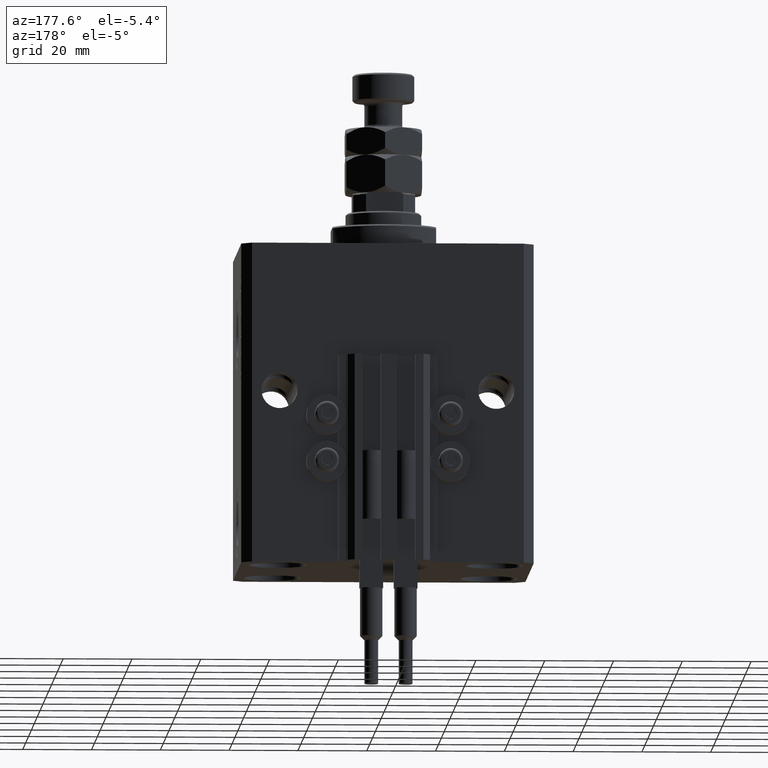
[diagram: clean part render]
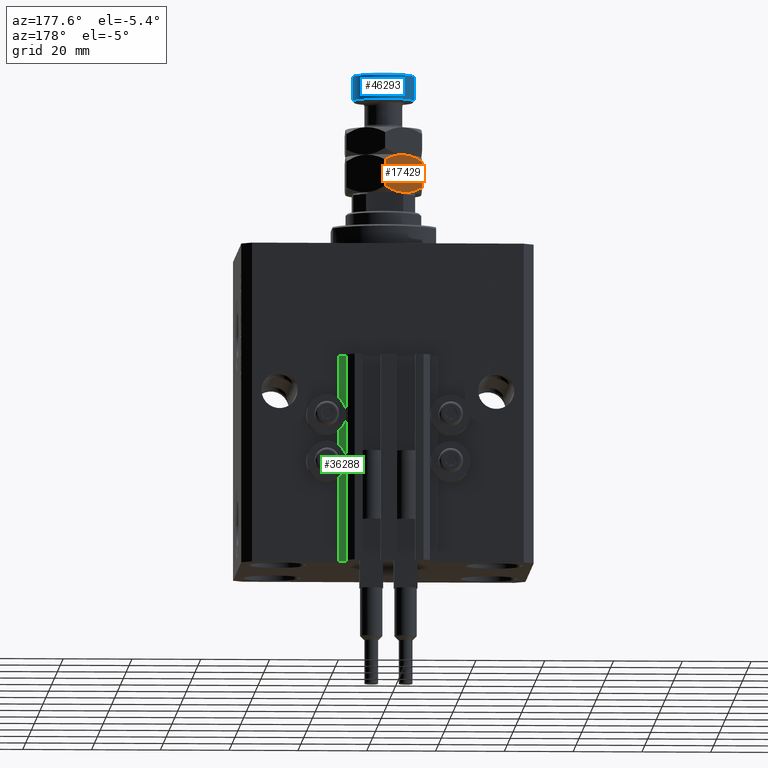
[diagram: same view with three faces highlighted in distinct colors, each labeled with its STEP entity id]
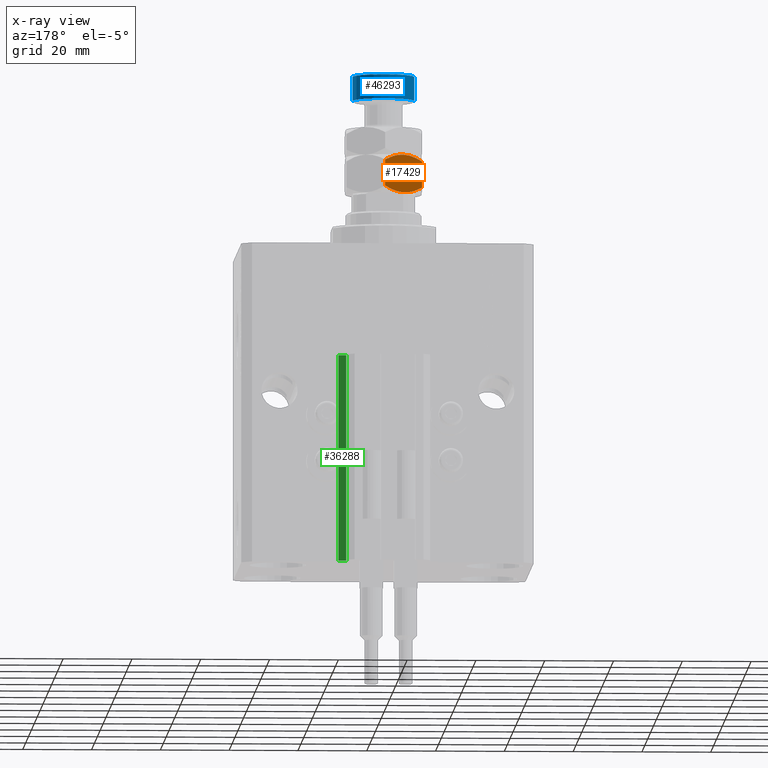
[diagram: x-ray of the same camera — body ghosted, the three highlighted faces saturated]
A machine part, auxiliary view with three faces highlighted in distinct colors.
The next image is the same camera in x-ray (body ghosted, the three faces saturated) — at least one of them is partly hidden behind the body in this view.
Their STEP definitions:

[orange] entity #17429 — the highlighted planar face has unit normal (0.5, -0.866, 0).
#1048 = B_SPLINE_CURVE_WITH_KNOTS ( 'NONE', 3,
 ( #16907, #5752, #32385, #20956, #13134, #36673, #28581, #13620 ),
 .UNSPECIFIED., .F., .F.,
 ( 4, 2, 2, 4 ),
 ( 2.544311317612473652E-07, 0.003291871675740032539, 0.004937680298044168185, 0.006583488920348303831 ),
 .UNSPECIFIED. ) ;
#1304 = VERTEX_POINT ( 'NONE', #27755 ) ;
#1495 = CARTESIAN_POINT ( 'NONE',  ( -10.13851939750335696, 6.848229018838968507, 9.795670135581390880 ) ) ;
#1552 = VECTOR ( 'NONE', #30016, 1000.000000000000000 ) ;
#2055 = CARTESIAN_POINT ( 'NONE',  ( -5.499999999999992895, 9.526279441628830114, 0.000000000000000000 ) ) ;
#3750 = FACE_OUTER_BOUND ( 'NONE', #33622, .T. ) ;
#4187 = B_SPLINE_CURVE_WITH_KNOTS ( 'NONE', 3,
 ( #22260, #45064, #14667, #25814, #41515, #30132, #44812, #10112 ),
 .UNSPECIFIED., .F., .F.,
 ( 4, 2, 2, 4 ),
 ( 2.544311317609508508E-07, 0.003291871675740026034, 0.004937680298044156910, 0.006583488920348289086 ),
 .UNSPECIFIED. ) ;
#4335 = AXIS2_PLACEMENT_3D ( 'NONE', #23017, #46073, #11376 ) ;
#5432 = VERTEX_POINT ( 'NONE', #38506 ) ;
#5559 = VERTEX_POINT ( 'NONE', #8850 ) ;
#5752 = CARTESIAN_POINT ( 'NONE',  ( -10.13752086928278118, 6.848805519375908979, 1.203753363881748362 ) ) ;
#6853 = EDGE_CURVE ( 'NONE', #5559, #24957, #22577, .T. ) ;
#7717 = EDGE_CURVE ( 'NONE', #49328, #5432, #45206, .T. ) ;
#8850 = CARTESIAN_POINT ( 'NONE',  ( -11.00000000000000000, 6.350852961085890591, 9.298294077828234805 ) ) ;
#10112 = CARTESIAN_POINT ( 'NONE',  ( -5.499999999999990230, 9.526279441628824785, 11.00000000000000000 ) ) ;
#11376 = DIRECTION ( 'NONE',  ( 0.8660254037844389297, 0.4999999999999992784, 0.000000000000000000 ) ) ;
#13134 = CARTESIAN_POINT ( 'NONE',  ( -7.420105971005176215, 8.417705742396382362, 0.2081220748670755127 ) ) ;
#13620 = CARTESIAN_POINT ( 'NONE',  ( -5.499999999999992895, 9.526279441628830114, 0.000000000000000000 ) ) ;
#13721 = CARTESIAN_POINT ( 'NONE',  ( -3.602926119288147433, 10.62155555733042434, 0.1689086083647601266 ) ) ;
#14667 = CARTESIAN_POINT ( 'NONE',  ( -1.744478007639206130, 11.69453107486589083, 10.21937661245322637 ) ) ;
#16466 = CARTESIAN_POINT ( 'NONE',  ( -5.499999999999990230, 9.526279441628824785, 11.00000000000000000 ) ) ;
#16907 = CARTESIAN_POINT ( 'NONE',  ( -11.00000000000000000, 6.350852961085892368, 1.701705922171765195 ) ) ;
#17429 = ADVANCED_FACE ( 'NONE', ( #3750 ), #18016, .F. ) ;
#18016 = PLANE ( 'NONE',  #4335 ) ;
#18334 = CARTESIAN_POINT ( 'NONE',  ( 0.000000000000000000, 12.70170592217176342, 11.00000000000000000 ) ) ;
#20501 = CARTESIAN_POINT ( 'NONE',  ( -11.00000000000000000, 6.350852961085890591, 9.298294077828234805 ) ) ;
#20742 = CARTESIAN_POINT ( 'NONE',  ( -7.397073880711845462, 8.431003325927239445, 10.83109139163524404 ) ) ;
#20956 = CARTESIAN_POINT ( 'NONE',  ( -7.884967580346608607, 8.149317767107183030, 0.3282192120904074417 ) ) ;
#21238 = CARTESIAN_POINT ( 'NONE',  ( -6.456670474420569406, 8.973945485696344093, 11.00000000000000000 ) ) ;
#22260 = CARTESIAN_POINT ( 'NONE',  ( -4.327962126576701651E-16, 12.70170592217176342, 9.298294077828241910 ) ) ;
#22577 = LINE ( 'NONE', #38031, #24200 ) ;
#23017 = CARTESIAN_POINT ( 'NONE',  ( 0.000000000000000000, 12.70170592217176342, 11.00000000000000000 ) ) ;
#24200 = VECTOR ( 'NONE', #34251, 1000.000000000000000 ) ;
#24441 = ORIENTED_EDGE ( 'NONE', *, *, #28535, .F. ) ;
#24957 = VERTEX_POINT ( 'NONE', #26880 ) ;
#25814 = CARTESIAN_POINT ( 'NONE',  ( -3.115032419653383400, 10.90324111615047542, 10.67178078790959539 ) ) ;
#26880 = CARTESIAN_POINT ( 'NONE',  ( -11.00000000000000000, 6.350852961085892368, 1.701705922171765195 ) ) ;
#27732 = EDGE_CURVE ( 'NONE', #1304, #5559, #39915, .T. ) ;
#27755 = CARTESIAN_POINT ( 'NONE',  ( -5.499999999999990230, 9.526279441628824785, 11.00000000000000000 ) ) ;
#28299 = CARTESIAN_POINT ( 'NONE',  ( -4.327962126576701651E-16, 12.70170592217176342, 9.298294077828241910 ) ) ;
#28535 = EDGE_CURVE ( 'NONE', #49328, #1304, #4187, .T. ) ;
#28581 = CARTESIAN_POINT ( 'NONE',  ( -5.981709287746635795, 9.248164454677164414, 1.734723475976807094E-15 ) ) ;
#29176 = CARTESIAN_POINT ( 'NONE',  ( -1.748214531935804672, 11.69237379155741330, 0.7776848045220272621 ) ) ;
#29455 = EDGE_CURVE ( 'NONE', #24957, #36551, #1048, .T. ) ;
#30016 = DIRECTION ( 'NONE',  ( -0.000000000000000000, -0.000000000000000000, -1.000000000000000000 ) ) ;
#30132 = CARTESIAN_POINT ( 'NONE',  ( -4.529374112020101428, 10.08667055933643830, 10.95634070256487469 ) ) ;
#32203 = ORIENTED_EDGE ( 'NONE', *, *, #6853, .F. ) ;
#32385 = CARTESIAN_POINT ( 'NONE',  ( -9.255521992360788985, 7.358027808391769398, 0.7806233875467772920 ) ) ;
#32979 = CARTESIAN_POINT ( 'NONE',  ( -4.543329525579419048, 10.07861339756131791, 1.768604793866978714E-15 ) ) ;
#33622 = EDGE_LOOP ( 'NONE', ( #40536, #32203, #36833, #24441, #44337, #43864 ) ) ;
#34251 = DIRECTION ( 'NONE',  ( -0.000000000000000000, -0.000000000000000000, -1.000000000000000000 ) ) ;
#36551 = VERTEX_POINT ( 'NONE', #39329 ) ;
#36673 = CARTESIAN_POINT ( 'NONE',  ( -6.470625887979888802, 8.965888323921223702, 0.04365929743512723255 ) ) ;
#36833 = ORIENTED_EDGE ( 'NONE', *, *, #27732, .F. ) ;
#37733 = EDGE_CURVE ( 'NONE', #36551, #5432, #40366, .T. ) ;
#38031 = CARTESIAN_POINT ( 'NONE',  ( -11.00000000000000000, 6.350852961085890591, 11.00000000000000000 ) ) ;
#38506 = CARTESIAN_POINT ( 'NONE',  ( 9.006588997586899406E-16, 12.70170592217176342, 1.701705922171758312 ) ) ;
#39329 = CARTESIAN_POINT ( 'NONE',  ( -5.499999999999992895, 9.526279441628830114, 0.000000000000000000 ) ) ;
#39915 = B_SPLINE_CURVE_WITH_KNOTS ( 'NONE', 3,
 ( #16466, #21238, #20742, #47358, #1495, #20501 ),
 .UNSPECIFIED., .F., .F.,
 ( 4, 2, 4 ),
 ( 0.006583488920348289086, 0.009852050593448704457, 0.01312061226654911983 ),
 .UNSPECIFIED. ) ;
#40366 = B_SPLINE_CURVE_WITH_KNOTS ( 'NONE', 3,
 ( #2055, #32979, #13721, #29176, #44622, #40818 ),
 .UNSPECIFIED., .F., .F.,
 ( 4, 2, 4 ),
 ( 0.006583488920348303831, 0.009852050593448711396, 0.01312061226654911809 ),
 .UNSPECIFIED. ) ;
#40536 = ORIENTED_EDGE ( 'NONE', *, *, #29455, .F. ) ;
#40818 = CARTESIAN_POINT ( 'NONE',  ( 9.006588997586899406E-16, 12.70170592217176342, 1.701705922171758312 ) ) ;
#41515 = CARTESIAN_POINT ( 'NONE',  ( -3.579894028994817123, 10.63485314086127786, 10.79187792513292798 ) ) ;
#43864 = ORIENTED_EDGE ( 'NONE', *, *, #37733, .F. ) ;
#44337 = ORIENTED_EDGE ( 'NONE', *, *, #7717, .T. ) ;
#44622 = CARTESIAN_POINT ( 'NONE',  ( -0.8614806024966418230, 12.20432986441868728, 1.204329864418604235 ) ) ;
#44812 = CARTESIAN_POINT ( 'NONE',  ( -5.018290712253354435, 9.804394428580495813, 11.00000000000000178 ) ) ;
#45064 = CARTESIAN_POINT ( 'NONE',  ( -0.8624791307172121613, 12.20375336388174681, 9.796246636118258522 ) ) ;
#45206 = LINE ( 'NONE', #18334, #1552 ) ;
#46073 = DIRECTION ( 'NONE',  ( 0.4999999999999993339, -0.8660254037844390407, 0.000000000000000000 ) ) ;
#47358 = CARTESIAN_POINT ( 'NONE',  ( -9.251785468064188223, 7.360185091700242488, 10.22231519547797340 ) ) ;
#49328 = VERTEX_POINT ( 'NONE', #28299 ) ;

[blue] entity #46293 — the highlighted cylindrical surface (edge-blend (fillet) strip) has radius 9 mm, axis along (-0, -0, -1).
#2474 = AXIS2_PLACEMENT_3D ( 'NONE', #11375, #19454, #34433 ) ;
#5303 = CARTESIAN_POINT ( 'NONE',  ( 0.000000000000000000, 0.000000000000000000, 34.49999999999999289 ) ) ;
#9770 = VERTEX_POINT ( 'NONE', #20682 ) ;
#9984 = VERTEX_POINT ( 'NONE', #49222 ) ;
#11375 = CARTESIAN_POINT ( 'NONE',  ( 0.000000000000000000, 0.000000000000000000, 35.00000000000000000 ) ) ;
#11389 = CARTESIAN_POINT ( 'NONE',  ( -9.000000000000000000, 0.000000000000000000, 34.49999999999999289 ) ) ;
#11408 = VERTEX_POINT ( 'NONE', #11389 ) ;
#12586 = ORIENTED_EDGE ( 'NONE', *, *, #26668, .T. ) ;
#13677 = CARTESIAN_POINT ( 'NONE',  ( -9.000000000000000000, 0.000000000000000000, 27.50000000000000000 ) ) ;
#14925 = CYLINDRICAL_SURFACE ( 'NONE', #2474, 9.000000000000000000 ) ;
#15193 = AXIS2_PLACEMENT_3D ( 'NONE', #5303, #20757, #36228 ) ;
#15909 = CARTESIAN_POINT ( 'NONE',  ( -9.000000000000000000, 0.000000000000000000, 35.00000000000000000 ) ) ;
#19454 = DIRECTION ( 'NONE',  ( -0.000000000000000000, -0.000000000000000000, -1.000000000000000000 ) ) ;
#20682 = CARTESIAN_POINT ( 'NONE',  ( 9.000000000000000000, 1.102182119232617714E-15, 34.49999999999999289 ) ) ;
#20757 = DIRECTION ( 'NONE',  ( 0.000000000000000000, 0.000000000000000000, -1.000000000000000000 ) ) ;
#20785 = DIRECTION ( 'NONE',  ( 1.000000000000000000, 0.000000000000000000, 0.000000000000000000 ) ) ;
#22795 = EDGE_LOOP ( 'NONE', ( #28781, #48499, #12586, #27675 ) ) ;
#23911 = EDGE_CURVE ( 'NONE', #9770, #9984, #37751, .T. ) ;
#24608 = CARTESIAN_POINT ( 'NONE',  ( 0.000000000000000000, 0.000000000000000000, 27.50000000000000000 ) ) ;
#26668 = EDGE_CURVE ( 'NONE', #9984, #49496, #27274, .T. ) ;
#27274 = CIRCLE ( 'NONE', #49083, 9.000000000000000000 ) ;
#27675 = ORIENTED_EDGE ( 'NONE', *, *, #34092, .F. ) ;
#28781 = ORIENTED_EDGE ( 'NONE', *, *, #39292, .T. ) ;
#30418 = CARTESIAN_POINT ( 'NONE',  ( 9.000000000000000000, 1.102182119232617714E-15, 35.00000000000000000 ) ) ;
#31376 = LINE ( 'NONE', #15909, #39421 ) ;
#34092 = EDGE_CURVE ( 'NONE', #11408, #49496, #31376, .T. ) ;
#34433 = DIRECTION ( 'NONE',  ( -1.000000000000000000, 0.000000000000000000, 0.000000000000000000 ) ) ;
#36228 = DIRECTION ( 'NONE',  ( 1.000000000000000000, 0.000000000000000000, 0.000000000000000000 ) ) ;
#37751 = LINE ( 'NONE', #30418, #44941 ) ;
#37850 = CIRCLE ( 'NONE', #15193, 9.000000000000000000 ) ;
#39292 = EDGE_CURVE ( 'NONE', #11408, #9770, #37850, .T. ) ;
#39421 = VECTOR ( 'NONE', #46321, 1000.000000000000000 ) ;
#40054 = DIRECTION ( 'NONE',  ( -0.000000000000000000, -0.000000000000000000, 1.000000000000000000 ) ) ;
#42314 = DIRECTION ( 'NONE',  ( -0.000000000000000000, -0.000000000000000000, -1.000000000000000000 ) ) ;
#44941 = VECTOR ( 'NONE', #42314, 1000.000000000000000 ) ;
#45825 = FACE_OUTER_BOUND ( 'NONE', #22795, .T. ) ;
#46293 = ADVANCED_FACE ( 'NONE', ( #45825 ), #14925, .T. ) ;
#46321 = DIRECTION ( 'NONE',  ( -0.000000000000000000, -0.000000000000000000, -1.000000000000000000 ) ) ;
#48499 = ORIENTED_EDGE ( 'NONE', *, *, #23911, .T. ) ;
#49083 = AXIS2_PLACEMENT_3D ( 'NONE', #24608, #40054, #20785 ) ;
#49222 = CARTESIAN_POINT ( 'NONE',  ( 9.000000000000000000, 1.102182119232617714E-15, 27.50000000000000000 ) ) ;
#49496 = VERTEX_POINT ( 'NONE', #13677 ) ;

[green] entity #36288 — the highlighted planar face has unit normal (0, 1, 0).
#78 = VECTOR ( 'NONE', #27498, 1000.000000000000000 ) ;
#223 = DIRECTION ( 'NONE',  ( -1.000000000000000000, 0.000000000000000000, 0.000000000000000000 ) ) ;
#470 = LINE ( 'NONE', #23271, #10861 ) ;
#844 = EDGE_LOOP ( 'NONE', ( #14436, #33197, #14149, #41813 ) ) ;
#1125 = FACE_OUTER_BOUND ( 'NONE', #844, .T. ) ;
#9883 = CARTESIAN_POINT ( 'NONE',  ( 12.20000000000000107, 34.00000000000001421, -93.00000000000000000 ) ) ;
#10268 = LINE ( 'NONE', #29012, #31734 ) ;
#10861 = VECTOR ( 'NONE', #223, 1000.000000000000000 ) ;
#12789 = DIRECTION ( 'NONE',  ( 0.000000000000000000, 0.000000000000000000, 1.000000000000000000 ) ) ;
#13886 = EDGE_CURVE ( 'NONE', #22175, #42231, #10268, .T. ) ;
#14149 = ORIENTED_EDGE ( 'NONE', *, *, #17313, .T. ) ;
#14289 = AXIS2_PLACEMENT_3D ( 'NONE', #47468, #40129, #12789 ) ;
#14436 = ORIENTED_EDGE ( 'NONE', *, *, #20894, .F. ) ;
#16575 = PLANE ( 'NONE',  #14289 ) ;
#17263 = CARTESIAN_POINT ( 'NONE',  ( 14.49999999999999645, 34.00000000000001421, -93.00000000000000000 ) ) ;
#17313 = EDGE_CURVE ( 'NONE', #35204, #22175, #20810, .T. ) ;
#20198 = CARTESIAN_POINT ( 'NONE',  ( 12.20000000000000107, 34.00000000000001421, -33.00000000000000000 ) ) ;
#20598 = VERTEX_POINT ( 'NONE', #32992 ) ;
#20810 = LINE ( 'NONE', #17263, #48841 ) ;
#20894 = EDGE_CURVE ( 'NONE', #20598, #42231, #470, .T. ) ;
#22175 = VERTEX_POINT ( 'NONE', #9883 ) ;
#23271 = CARTESIAN_POINT ( 'NONE',  ( 14.49999999999999645, 34.00000000000001421, -33.00000000000000000 ) ) ;
#27498 = DIRECTION ( 'NONE',  ( 0.000000000000000000, 0.000000000000000000, 1.000000000000000000 ) ) ;
#29012 = CARTESIAN_POINT ( 'NONE',  ( 12.20000000000000107, 34.00000000000001421, -93.00000000000000000 ) ) ;
#31734 = VECTOR ( 'NONE', #36368, 1000.000000000000000 ) ;
#32992 = CARTESIAN_POINT ( 'NONE',  ( 14.49999999999999645, 34.00000000000001421, -33.00000000000000000 ) ) ;
#33197 = ORIENTED_EDGE ( 'NONE', *, *, #45627, .F. ) ;
#35204 = VERTEX_POINT ( 'NONE', #44470 ) ;
#36277 = CARTESIAN_POINT ( 'NONE',  ( 14.49999999999999645, 34.00000000000001421, -93.00000000000000000 ) ) ;
#36288 = ADVANCED_FACE ( 'NONE', ( #1125 ), #16575, .T. ) ;
#36368 = DIRECTION ( 'NONE',  ( 0.000000000000000000, 0.000000000000000000, 1.000000000000000000 ) ) ;
#40129 = DIRECTION ( 'NONE',  ( 0.000000000000000000, 1.000000000000000000, -0.000000000000000000 ) ) ;
#41813 = ORIENTED_EDGE ( 'NONE', *, *, #13886, .T. ) ;
#42231 = VERTEX_POINT ( 'NONE', #20198 ) ;
#42700 = LINE ( 'NONE', #36277, #78 ) ;
#44470 = CARTESIAN_POINT ( 'NONE',  ( 14.49999999999999645, 34.00000000000001421, -93.00000000000000000 ) ) ;
#45627 = EDGE_CURVE ( 'NONE', #35204, #20598, #42700, .T. ) ;
#47468 = CARTESIAN_POINT ( 'NONE',  ( 14.49999999999999645, 34.00000000000001421, -93.00000000000000000 ) ) ;
#48400 = DIRECTION ( 'NONE',  ( -1.000000000000000000, 0.000000000000000000, 0.000000000000000000 ) ) ;
#48841 = VECTOR ( 'NONE', #48400, 1000.000000000000000 ) ;